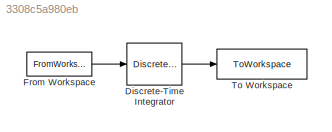
MODEL slx_3308c5a980eb
KIND model
CONFIG AbsTol = auto
CONFIG EnableMultiTasking = off
CONFIG FixedStep = auto
CONFIG MaxStep = auto
CONFIG MinStep = auto
CONFIG RelTol = 1e-3
CONFIG SampleTimeConstraint = Unconstrained
CONFIG SolverName = VariableStepAuto
CONFIG StartTime = 0.0
CONFIG StopTime = 10.0
BLOCK [DiscreteIntegrator] Discrete-Time Integrator
  ICPrevOutput = DiscIntNeverNeededParam
  ICPrevScaledInput = DiscIntNeverNeededParam
  InitialCondition = initial_condition
  InitialConditionSetting = Auto
  Ports = [1, 1]
  SampleTime = Ts
  gainval = K
BLOCK [FromWorkspace] From Workspace
  SampleTime = Ts
  VariableName = [t', in']
BLOCK [ToWorkspace] To Workspace
  FixptAsFi = on
  MaxDataPoints = inf
  Ports = [1]
  SampleTime = Ts
  Save2DSignal = 2-D array (concatenate along first dimension)
  VariableName = out
LINE Discrete-Time Integrator:1 -> To Workspace:1
LINE From Workspace:1 -> Discrete-Time Integrator:1
